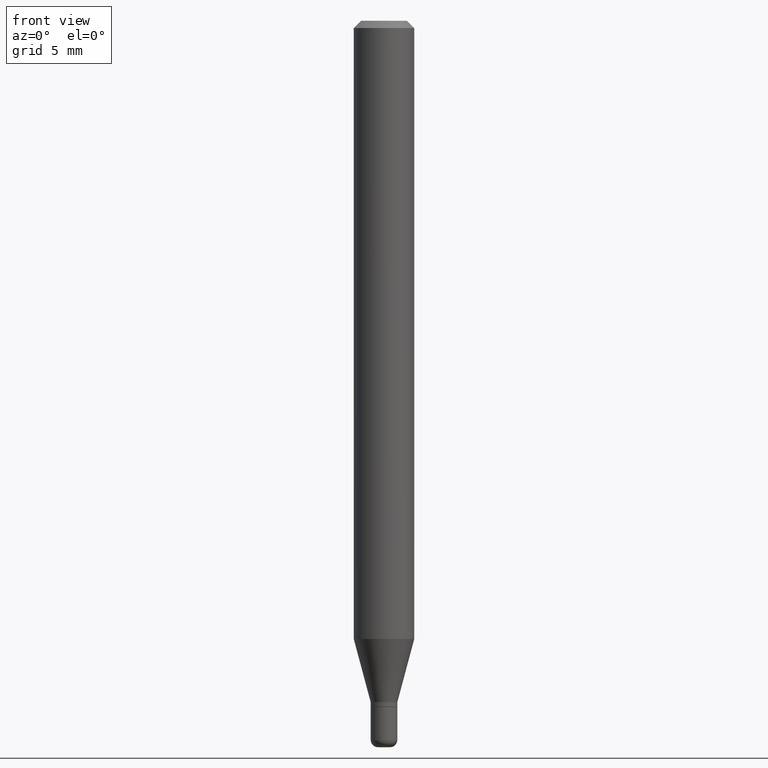
[diagram: clean part render]
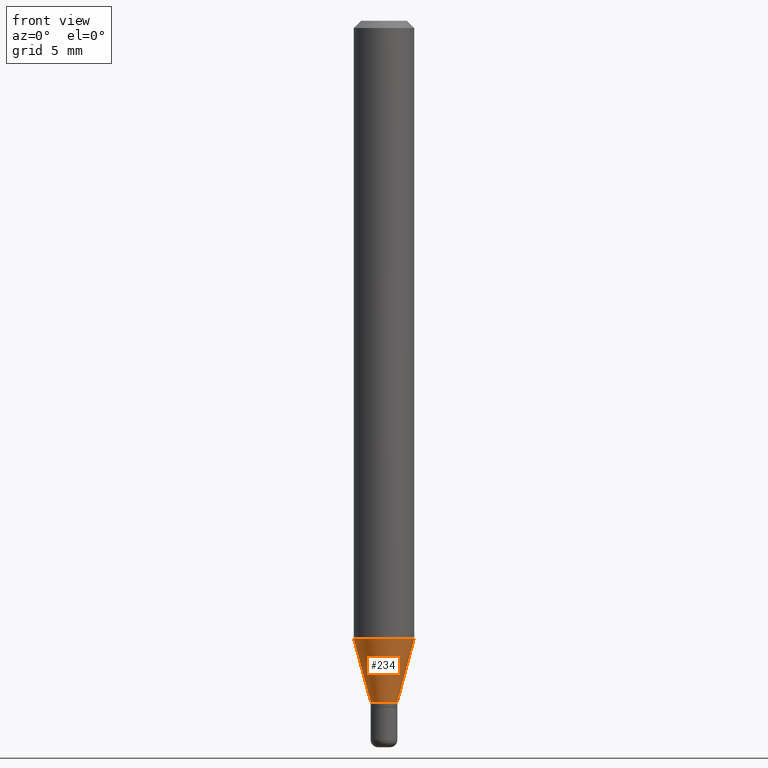
[diagram: same view with one face highlighted and labeled with its STEP entity id]
A machine part, front view. The second image highlights one B-rep face of the part: STEP entity #234.
In plain terms, the highlighted conical surface has half-angle 15 deg.
Its self-contained STEP definition (entity closure, byte-faithful):
#18 = EDGE_CURVE ( 'NONE', #322, #280, #421, .T. ) ;
#20 = LINE ( 'NONE', #182, #93 ) ;
#24 = DIRECTION ( 'NONE',  ( -2.445468806185136597E-29, 3.491481338843145583E-15, 1.000000000000000000 ) ) ;
#65 = VECTOR ( 'NONE', #197, 39.37007874015748854 ) ;
#84 = CARTESIAN_POINT ( 'NONE',  ( -0.02750000000000000708, -4.364738262031039467E-15, -1.407000000000000028 ) ) ;
#93 = VECTOR ( 'NONE', #332, 39.37007874015748854 ) ;
#94 = CARTESIAN_POINT ( 'NONE',  ( 3.121343126147216904E-29, -4.456450742493864567E-15, -1.276378221735089635 ) ) ;
#99 = EDGE_LOOP ( 'NONE', ( #457, #174, #291, #194 ) ) ;
#108 = VERTEX_POINT ( 'NONE', #84 ) ;
#149 = DIRECTION ( 'NONE',  ( 1.000000000000000000, -6.982962677686262766E-15, 0.000000000000000000 ) ) ;
#156 = CARTESIAN_POINT ( 'NONE',  ( 3.440774610302487541E-29, -4.912514243752305891E-15, -1.407000000000000028 ) ) ;
#161 = CARTESIAN_POINT ( 'NONE',  ( 3.440774610302487541E-29, -4.912514243752305891E-15, -1.407000000000000028 ) ) ;
#174 = ORIENTED_EDGE ( 'NONE', *, *, #276, .T. ) ;
#182 = CARTESIAN_POINT ( 'NONE',  ( 0.02750000000000000708, -5.104545717388678383E-15, -1.407000000000000028 ) ) ;
#185 = DIRECTION ( 'NONE',  ( 1.000000000000000000, -6.982962677686277755E-15, 0.000000000000000000 ) ) ;
#191 = AXIS2_PLACEMENT_3D ( 'NONE', #94, #284, #149 ) ;
#193 = EDGE_CURVE ( 'NONE', #409, #280, #20, .T. ) ;
#194 = ORIENTED_EDGE ( 'NONE', *, *, #18, .F. ) ;
#197 = DIRECTION ( 'NONE',  ( -0.2588190451025211281, 5.211531920934547886E-15, 0.9659258262890679791 ) ) ;
#216 = FACE_OUTER_BOUND ( 'NONE', #99, .T. ) ;
#232 = CARTESIAN_POINT ( 'NONE',  ( -0.02750000000000000708, -4.717114991418277772E-15, -1.407000000000000028 ) ) ;
#234 = ADVANCED_FACE ( 'NONE', ( #216 ), #369, .T. ) ;
#267 = CARTESIAN_POINT ( 'NONE',  ( 0.02750000000000000708, -5.104545717388678383E-15, -1.407000000000000028 ) ) ;
#268 = CARTESIAN_POINT ( 'NONE',  ( 0.06250000000000000000, -4.892885909849255447E-15, -1.276378221735089635 ) ) ;
#272 = CARTESIAN_POINT ( 'NONE',  ( -0.06250000000000000000, -4.012361532643800373E-15, -1.276378221735089635 ) ) ;
#276 = EDGE_CURVE ( 'NONE', #108, #409, #295, .T. ) ;
#278 = AXIS2_PLACEMENT_3D ( 'NONE', #156, #516, #318 ) ;
#280 = VERTEX_POINT ( 'NONE', #268 ) ;
#284 = DIRECTION ( 'NONE',  ( -2.445468806185136597E-29, 3.491481338843145583E-15, 1.000000000000000000 ) ) ;
#291 = ORIENTED_EDGE ( 'NONE', *, *, #193, .T. ) ;
#295 = CIRCLE ( 'NONE', #278, 0.02750000000000000708 ) ;
#318 = DIRECTION ( 'NONE',  ( 1.000000000000000000, -6.982962677686277755E-15, 0.000000000000000000 ) ) ;
#322 = VERTEX_POINT ( 'NONE', #272 ) ;
#332 = DIRECTION ( 'NONE',  ( 0.2588190451025211281, 1.565188264969622954E-15, 0.9659258262890679791 ) ) ;
#347 = EDGE_CURVE ( 'NONE', #108, #322, #432, .T. ) ;
#369 = CONICAL_SURFACE ( 'NONE', #438, 0.02750000000000000708, 0.2617993877991498519 ) ;
#409 = VERTEX_POINT ( 'NONE', #267 ) ;
#421 = CIRCLE ( 'NONE', #191, 0.06250000000000000000 ) ;
#432 = LINE ( 'NONE', #232, #65 ) ;
#438 = AXIS2_PLACEMENT_3D ( 'NONE', #161, #24, #185 ) ;
#457 = ORIENTED_EDGE ( 'NONE', *, *, #347, .F. ) ;
#516 = DIRECTION ( 'NONE',  ( -2.445468806185136597E-29, 3.491481338843145583E-15, 1.000000000000000000 ) ) ;